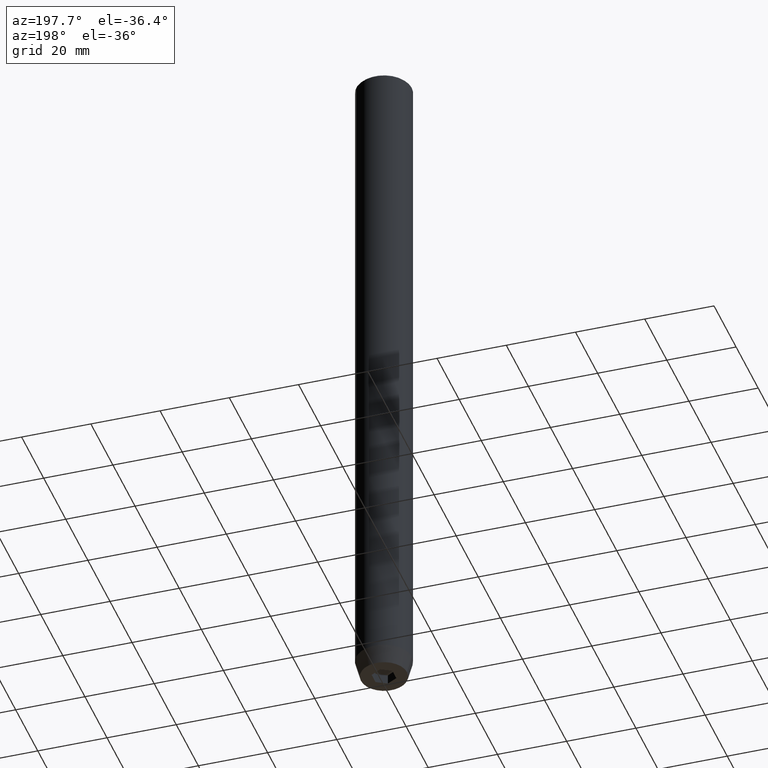
[diagram: clean part render]
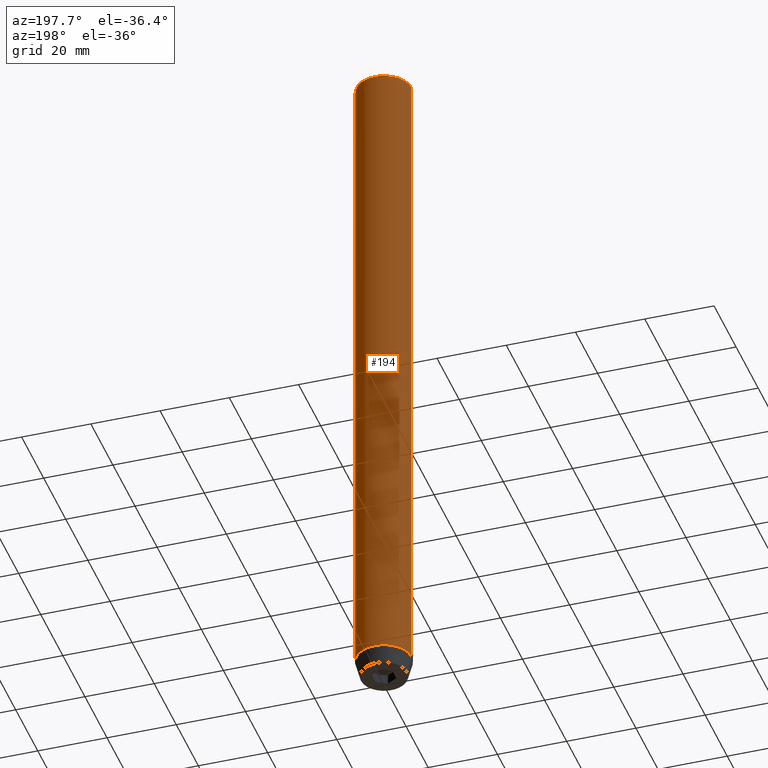
[diagram: same view with one face highlighted and labeled with its STEP entity id]
A machine part, auxiliary view. The second image highlights one B-rep face of the part: STEP entity #194.
In plain terms, the highlighted cylindrical surface (edge-blend (fillet) strip) has radius 8 mm, axis along (-0, -0, 1).
Its self-contained STEP definition (entity closure, byte-faithful):
#2 = DIRECTION ( 'NONE',  ( -0.000000000000000000, -0.000000000000000000, 1.000000000000000000 ) ) ;
#27 = LINE ( 'NONE', #206, #60 ) ;
#60 = VECTOR ( 'NONE', #197, 1000.000000000000000 ) ;
#89 = CARTESIAN_POINT ( 'NONE',  ( 8.000000000000000000, 0.000000000000000000, -195.0000000000000000 ) ) ;
#93 = CARTESIAN_POINT ( 'NONE',  ( 0.000000000000000000, 0.000000000000000000, 0.000000000000000000 ) ) ;
#94 = VERTEX_POINT ( 'NONE', #466 ) ;
#113 = AXIS2_PLACEMENT_3D ( 'NONE', #359, #303, #220 ) ;
#117 = DIRECTION ( 'NONE',  ( 1.000000000000000000, 0.000000000000000000, 0.000000000000000000 ) ) ;
#171 = LINE ( 'NONE', #260, #569 ) ;
#179 = CARTESIAN_POINT ( 'NONE',  ( -8.000000000000000000, 9.797174393178825657E-16, -0.4999999999999935052 ) ) ;
#181 = DIRECTION ( 'NONE',  ( 0.000000000000000000, 0.000000000000000000, -1.000000000000000000 ) ) ;
#194 = ADVANCED_FACE ( 'NONE', ( #268 ), #350, .T. ) ;
#197 = DIRECTION ( 'NONE',  ( -0.000000000000000000, -0.000000000000000000, 1.000000000000000000 ) ) ;
#206 = CARTESIAN_POINT ( 'NONE',  ( 8.000000000000000000, 0.000000000000000000, 0.000000000000000000 ) ) ;
#220 = DIRECTION ( 'NONE',  ( 1.000000000000000000, 0.000000000000000000, 0.000000000000000000 ) ) ;
#223 = ORIENTED_EDGE ( 'NONE', *, *, #389, .T. ) ;
#260 = CARTESIAN_POINT ( 'NONE',  ( -8.000000000000000000, 9.797174393178825657E-16, 0.000000000000000000 ) ) ;
#261 = CIRCLE ( 'NONE', #473, 8.000000000000000000 ) ;
#268 = FACE_OUTER_BOUND ( 'NONE', #310, .T. ) ;
#275 = CARTESIAN_POINT ( 'NONE',  ( -8.000000000000000000, 9.797174393178825657E-16, -195.0000000000000000 ) ) ;
#303 = DIRECTION ( 'NONE',  ( -0.000000000000000000, -0.000000000000000000, 1.000000000000000000 ) ) ;
#310 = EDGE_LOOP ( 'NONE', ( #223, #450, #395, #338 ) ) ;
#326 = EDGE_CURVE ( 'NONE', #502, #94, #27, .T. ) ;
#338 = ORIENTED_EDGE ( 'NONE', *, *, #326, .F. ) ;
#350 = CYLINDRICAL_SURFACE ( 'NONE', #526, 8.000000000000000000 ) ;
#359 = CARTESIAN_POINT ( 'NONE',  ( 0.000000000000000000, 0.000000000000000000, -195.0000000000000000 ) ) ;
#389 = EDGE_CURVE ( 'NONE', #502, #445, #432, .T. ) ;
#395 = ORIENTED_EDGE ( 'NONE', *, *, #534, .T. ) ;
#409 = CARTESIAN_POINT ( 'NONE',  ( 0.000000000000000000, 0.000000000000000000, -0.4999999999999935052 ) ) ;
#432 = CIRCLE ( 'NONE', #113, 8.000000000000000000 ) ;
#433 = EDGE_CURVE ( 'NONE', #445, #449, #171, .T. ) ;
#445 = VERTEX_POINT ( 'NONE', #275 ) ;
#449 = VERTEX_POINT ( 'NONE', #179 ) ;
#450 = ORIENTED_EDGE ( 'NONE', *, *, #433, .T. ) ;
#466 = CARTESIAN_POINT ( 'NONE',  ( 8.000000000000000000, 0.000000000000000000, -0.4999999999999935052 ) ) ;
#473 = AXIS2_PLACEMENT_3D ( 'NONE', #409, #181, #117 ) ;
#502 = VERTEX_POINT ( 'NONE', #89 ) ;
#503 = DIRECTION ( 'NONE',  ( -0.000000000000000000, -0.000000000000000000, 1.000000000000000000 ) ) ;
#526 = AXIS2_PLACEMENT_3D ( 'NONE', #93, #2, #547 ) ;
#534 = EDGE_CURVE ( 'NONE', #449, #94, #261, .T. ) ;
#547 = DIRECTION ( 'NONE',  ( 1.000000000000000000, 0.000000000000000000, 0.000000000000000000 ) ) ;
#569 = VECTOR ( 'NONE', #503, 1000.000000000000000 ) ;